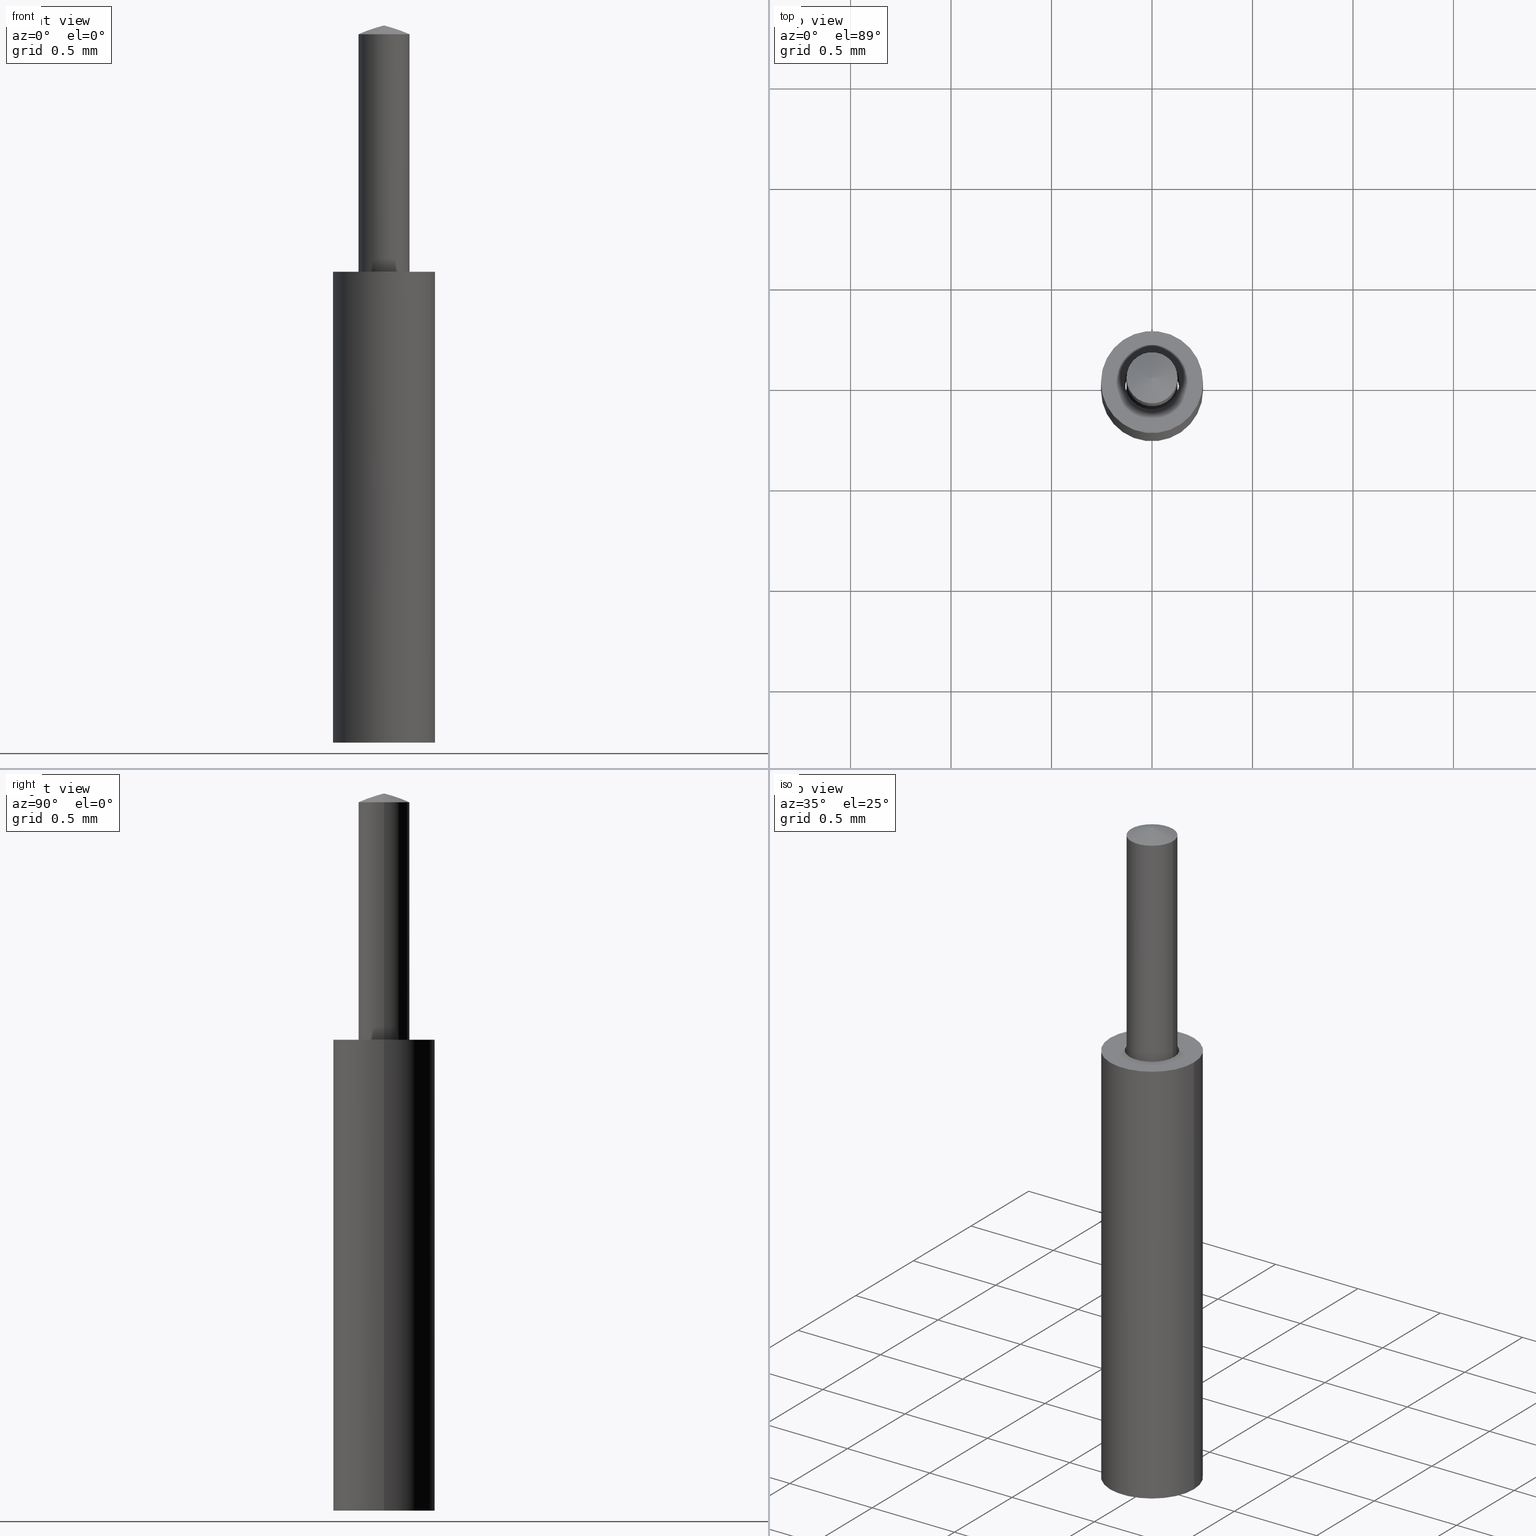
[diagram: canonical four-view strip — front | top / right | iso, engineering-drawing reading convention]
A machine part, canonical four-view strip (front | top / right | iso — engineering-drawing reading convention). The complete STEP part file that produces these views, byte-faithful:
ISO-10303-21;
HEADER;
FILE_DESCRIPTION (( 'STEP AP203' ),
    '1' );
FILE_NAME ('A2236-1-WR.STEP',
    '2013-11-19T12:27:52',
    ( '' ),
    ( '' ),
    'SwSTEP 2.0',
    'SolidWorks 2012',
    '' );
FILE_SCHEMA (( 'CONFIG_CONTROL_DESIGN' ));
ENDSEC;

DATA;
#1 = EDGE_CURVE ( 'NONE', #324, #334, #346, .T. ) ;
#2 = EDGE_CURVE ( 'NONE', #334, #301, #308, .T. ) ;
#3 = EDGE_CURVE ( 'NONE', #266, #330, #320, .T. ) ;
#4 = EDGE_CURVE ( 'NONE', #264, #271, #283, .T. ) ;
#5 = EDGE_CURVE ( 'NONE', #324, #351, #267, .T. ) ;
#6 = EDGE_CURVE ( 'NONE', #364, #340, #328, .T. ) ;
#7 = EDGE_CURVE ( 'NONE', #301, #351, #314, .T. ) ;
#8 = EDGE_CURVE ( 'NONE', #364, #266, #278, .T. ) ;
#9 = EDGE_CURVE ( 'NONE', #334, #324, #319, .T. ) ;
#10 = EDGE_CURVE ( 'NONE', #340, #330, #354, .T. ) ;
#11 = EDGE_CURVE ( 'NONE', #330, #266, #307, .T. ) ;
#12 = EDGE_CURVE ( 'NONE', #351, #301, #292, .T. ) ;
#13 = EDGE_CURVE ( 'NONE', #340, #364, #305, .T. ) ;
#14 = EDGE_CURVE ( 'NONE', #264, #345, #355, .T. ) ;
#15 = EDGE_CURVE ( 'NONE', #271, #365, #356, .T. ) ;
#16 = EDGE_CURVE ( 'NONE', #365, #345, #281, .T. ) ;
#17 = EDGE_CURVE ( 'NONE', #279, #271, #359, .T. ) ;
#18 = EDGE_CURVE ( 'NONE', #271, #264, #362, .T. ) ;
#19 = EDGE_CURVE ( 'NONE', #279, #264, #296, .T. ) ;
#20 = EDGE_CURVE ( 'NONE', #345, #365, #333, .T. ) ;
#21 = AXIS2_PLACEMENT_3D ( 'NONE', #227, #225, #138 ) ;
#22 = AXIS2_PLACEMENT_3D ( 'NONE', #151, #248, #135 ) ;
#23 = AXIS2_PLACEMENT_3D ( 'NONE', #244, #235, #232 ) ;
#24 = AXIS2_PLACEMENT_3D ( 'NONE', #261, #262, #169 ) ;
#25 = AXIS2_PLACEMENT_3D ( 'NONE', #245, #234, #233 ) ;
#26 = AXIS2_PLACEMENT_3D ( 'NONE', #251, #249, #250 ) ;
#27 = AXIS2_PLACEMENT_3D ( 'NONE', #260, #247, #258 ) ;
#28 = AXIS2_PLACEMENT_3D ( 'NONE', #236, #237, #238 ) ;
#29 = AXIS2_PLACEMENT_3D ( 'NONE', #239, #242, #241 ) ;
#30 = AXIS2_PLACEMENT_3D ( 'NONE', #230, #229, #137 ) ;
#31 = AXIS2_PLACEMENT_3D ( 'NONE', #141, #142, #252 ) ;
#32 = AXIS2_PLACEMENT_3D ( 'NONE', #143, #147, #146 ) ;
#33 = AXIS2_PLACEMENT_3D ( 'NONE', #149, #148, #153 ) ;
#34 = AXIS2_PLACEMENT_3D ( 'NONE', #156, #155, #154 ) ;
#35 = AXIS2_PLACEMENT_3D ( 'NONE', #183, #180, #184 ) ;
#36 = AXIS2_PLACEMENT_3D ( 'NONE', #140, #158, #157 ) ;
#37 = AXIS2_PLACEMENT_3D ( 'NONE', #159, #160, #145 ) ;
#38 = AXIS2_PLACEMENT_3D ( 'NONE', #161, #163, #150 ) ;
#39 = AXIS2_PLACEMENT_3D ( 'NONE', #168, #166, #162 ) ;
#40 = AXIS2_PLACEMENT_3D ( 'NONE', #165, #170, #174 ) ;
#41 = AXIS2_PLACEMENT_3D ( 'NONE', #176, #173, #171 ) ;
#42 = AXIS2_PLACEMENT_3D ( 'NONE', #177, #175, #167 ) ;
#43 = AXIS2_PLACEMENT_3D ( 'NONE', #179, #181, #178 ) ;
#44 = APPROVAL ( #217, 'UNSPECIFIED' ) ;
#45 = APPROVAL ( #136, 'UNSPECIFIED' ) ;
#46 = APPROVAL ( #223, 'UNSPECIFIED' ) ;
#47 = CC_DESIGN_PERSON_AND_ORGANIZATION_ASSIGNMENT ( #127, #256, ( #68 ) ) ;
#48 = CC_DESIGN_APPROVAL ( #45, ( #62 ) ) ;
#49 = ADVANCED_FACE ( 'NONE', ( #327, #318 ), #144, .T. ) ;
#50 = ADVANCED_FACE ( 'NONE', ( #270 ), #338, .T. ) ;
#51 = ADVANCED_FACE ( 'NONE', ( #332 ), #93, .F. ) ;
#52 = ADVANCED_FACE ( 'NONE', ( #331 ), #88, .T. ) ;
#53 = ADVANCED_FACE ( 'NONE', ( #300, #94 ), #172, .T. ) ;
#54 = CC_DESIGN_PERSON_AND_ORGANIZATION_ASSIGNMENT ( #91, #253, ( #62 ) ) ;
#55 = AXIS2_PLACEMENT_3D ( 'NONE', #188, #193, #192 ) ;
#56 = PRODUCT_RELATED_PRODUCT_CATEGORY ( 'detail', '', ( #84 ) ) ;
#57 = CC_DESIGN_SECURITY_CLASSIFICATION ( #62, ( #68 ) ) ;
#58 = CC_DESIGN_PERSON_AND_ORGANIZATION_ASSIGNMENT ( #125, #224, ( #68 ) ) ;
#59 = CC_DESIGN_PERSON_AND_ORGANIZATION_ASSIGNMENT ( #133, #218, ( #63 ) ) ;
#60 =( GEOMETRIC_REPRESENTATION_CONTEXT ( 3 ) GLOBAL_UNCERTAINTY_ASSIGNED_CONTEXT ( ( #79 ) ) GLOBAL_UNIT_ASSIGNED_CONTEXT ( ( #206, #205, #209 ) ) REPRESENTATION_CONTEXT ( 'NONE', 'WORKASPACE' ) );
#61 = CC_DESIGN_DATE_AND_TIME_ASSIGNMENT ( #114, #221, ( #63 ) ) ;
#62 = SECURITY_CLASSIFICATION ( '', '', #255 ) ;
#63 = PRODUCT_DEFINITION ( 'UNKNOWN', '', #68, #83 ) ;
#64 = AXIS2_PLACEMENT_3D ( 'NONE', #203, #211, #213 ) ;
#65 = CC_DESIGN_PERSON_AND_ORGANIZATION_ASSIGNMENT ( #132, #214, ( #84 ) ) ;
#66 = CC_DESIGN_DATE_AND_TIME_ASSIGNMENT ( #92, #254, ( #62 ) ) ;
#67 = AXIS2_PLACEMENT_3D ( 'NONE', #185, #182, #186 ) ;
#68 = PRODUCT_DEFINITION_FORMATION_WITH_SPECIFIED_SOURCE ( 'ANY', '', #84, .NOT_KNOWN. ) ;
#69 = CC_DESIGN_APPROVAL ( #46, ( #68 ) ) ;
#70 = CC_DESIGN_APPROVAL ( #44, ( #63 ) ) ;
#71 = DIMENSIONAL_EXPONENTS ( 1.000000000000000000, 0.0000000000000000000, 0.0000000000000000000, 0.0000000000000000000, 0.0000000000000000000, 0.0000000000000000000, 0.0000000000000000000 ) ;
#72 = ADVANCED_FACE ( 'NONE', ( #341 ), #86, .F. ) ;
#73 = ADVANCED_FACE ( 'NONE', ( #117 ), #109, .T. ) ;
#74 = ADVANCED_FACE ( 'NONE', ( #325 ), #134, .T. ) ;
#75 = ADVANCED_FACE ( 'NONE', ( #113 ), #102, .T. ) ;
#76 = ADVANCED_FACE ( 'NONE', ( #111 ), #130, .T. ) ;
#77 = ADVANCED_FACE ( 'NONE', ( #110 ), #187, .T. ) ;
#78 = ADVANCED_BREP_SHAPE_REPRESENTATION ( 'A2236-1-WR', ( #80, #81, #64 ), #60 ) ;
#79 = UNCERTAINTY_MEASURE_WITH_UNIT (LENGTH_MEASURE( 1.000000000000000100E-005 ), #206, 'distance_accuracy_value', 'NONE');
#80 = MANIFOLD_SOLID_BREP ( 'Revolve1', #343 ) ;
#81 = MANIFOLD_SOLID_BREP ( 'Revolve2', #309 ) ;
#82 = PRODUCT_DEFINITION_SHAPE ( 'NONE', 'NONE',  #63 ) ;
#83 = DESIGN_CONTEXT ( 'detailed design', #216, 'design' ) ;
#84 = PRODUCT ( 'A2236-1-WR', 'A2236-1-WR', '', ( #212 ) ) ;
#85 = PERSON ( 'UNSPECIFIED', 'UNSPECIFIED', 'UNSPECIFIED', ('UNSPECIFIED'), ('UNSPECIFIED'), ('UNSPECIFIED') ) ;
#86 = CYLINDRICAL_SURFACE ( 'NONE', #41, 0.005345904096558285100 ) ;
#87 = APPROVAL_DATE_TIME ( #90, #45 ) ;
#88 = CYLINDRICAL_SURFACE ( 'NONE', #39, 0.01000000000000000000 ) ;
#89 = COORDINATED_UNIVERSAL_TIME_OFFSET ( 5, 0, .BEHIND. ) ;
#90 = DATE_AND_TIME ( #106, #101 ) ;
#91 = PERSON_AND_ORGANIZATION ( #85, #131 ) ;
#92 = DATE_AND_TIME ( #119, #120 ) ;
#93 = CYLINDRICAL_SURFACE ( 'NONE', #38, 0.005345904096558285100 ) ;
#94 = FACE_BOUND ( 'NONE', #323, .T. ) ;
#95 = CALENDAR_DATE ( 2013, 19, 11 ) ;
#96 = PERSON_AND_ORGANIZATION ( #85, #131 ) ;
#97 = APPROVAL_DATE_TIME ( #121, #44 ) ;
#98 = CALENDAR_DATE ( 2013, 19, 11 ) ;
#99 = APPROVAL_PERSON_ORGANIZATION ( #105, #44, #219 ) ;
#100 = PERSON_AND_ORGANIZATION ( #85, #131 ) ;
#101 = LOCAL_TIME ( 7, 27, 52.00000000000000000, #103 ) ;
#102 = TOROIDAL_SURFACE ( 'NONE', #35, -0.008182880665241365500, 0.03289599500414629200 ) ;
#103 = COORDINATED_UNIVERSAL_TIME_OFFSET ( 5, 0, .BEHIND. ) ;
#104 = LOCAL_TIME ( 7, 27, 52.00000000000000000, #89 ) ;
#105 = PERSON_AND_ORGANIZATION ( #85, #131 ) ;
#106 = CALENDAR_DATE ( 2013, 19, 11 ) ;
#107 = SHAPE_DEFINITION_REPRESENTATION ( #82, #78 ) ;
#108 = LENGTH_MEASURE_WITH_UNIT ( LENGTH_MEASURE( 0.02539999999999999900 ), #207 );
#109 = CYLINDRICAL_SURFACE ( 'NONE', #42, 0.005000000000000000100 ) ;
#110 = FACE_OUTER_BOUND ( 'NONE', #295, .T. ) ;
#111 = FACE_OUTER_BOUND ( 'NONE', #317, .T. ) ;
#112 = LOCAL_TIME ( 7, 27, 52.00000000000000000, #116 ) ;
#113 = FACE_OUTER_BOUND ( 'NONE', #277, .T. ) ;
#114 = DATE_AND_TIME ( #98, #104 ) ;
#115 = APPROVAL_PERSON_ORGANIZATION ( #100, #46, #222 ) ;
#116 = COORDINATED_UNIVERSAL_TIME_OFFSET ( 5, 0, .BEHIND. ) ;
#117 = FACE_OUTER_BOUND ( 'NONE', #285, .T. ) ;
#118 = DATE_AND_TIME ( #126, #128 ) ;
#119 = CALENDAR_DATE ( 2013, 19, 11 ) ;
#120 = LOCAL_TIME ( 7, 27, 52.00000000000000000, #123 ) ;
#121 = DATE_AND_TIME ( #95, #112 ) ;
#122 = APPROVAL_PERSON_ORGANIZATION ( #96, #45, #139 ) ;
#123 = COORDINATED_UNIVERSAL_TIME_OFFSET ( 5, 0, .BEHIND. ) ;
#124 = APPROVAL_DATE_TIME ( #118, #46 ) ;
#125 = PERSON_AND_ORGANIZATION ( #85, #131 ) ;
#126 = CALENDAR_DATE ( 2013, 19, 11 ) ;
#127 = PERSON_AND_ORGANIZATION ( #85, #131 ) ;
#128 = LOCAL_TIME ( 7, 27, 52.00000000000000000, #129 ) ;
#129 = COORDINATED_UNIVERSAL_TIME_OFFSET ( 5, 0, .BEHIND. ) ;
#130 = TOROIDAL_SURFACE ( 'NONE', #67, -0.008182880665241365500, 0.03289599500414629200 ) ;
#131 = ORGANIZATION ( 'UNSPECIFIED', 'UNSPECIFIED', '' ) ;
#132 = PERSON_AND_ORGANIZATION ( #85, #131 ) ;
#133 = PERSON_AND_ORGANIZATION ( #85, #131 ) ;
#134 = CYLINDRICAL_SURFACE ( 'NONE', #43, 0.01000000000000000000 ) ;
#135 = DIRECTION ( 'NONE',  ( -1.000000000000000000, 0.0000000000000000000, 0.0000000000000000000 ) ) ;
#136 = APPROVAL_STATUS ( 'not_yet_approved' ) ;
#137 = DIRECTION ( 'NONE',  ( -1.000000000000000000, 0.0000000000000000000, 0.0000000000000000000 ) ) ;
#138 = DIRECTION ( 'NONE',  ( -1.000000000000000000, 0.0000000000000000000, 0.0000000000000000000 ) ) ;
#139 = APPROVAL_ROLE ( '' ) ;
#140 = CARTESIAN_POINT ( 'NONE',  ( 0.0000000000000000000, 0.005345904096558279900, 0.09224620568251602800 ) ) ;
#141 = CARTESIAN_POINT ( 'NONE',  ( 0.008182880665241365500, 0.0000000000000000000, 0.1086287128368767600 ) ) ;
#142 = DIRECTION ( 'NONE',  ( 0.0000000000000000000, -1.000000000000000000, 0.0000000000000000000 ) ) ;
#143 = CARTESIAN_POINT ( 'NONE',  ( 0.0000000000000000000, 0.0000000000000000000, 0.1387676933219367000 ) ) ;
#144 = PLANE ( 'NONE',  #36 ) ;
#145 = DIRECTION ( 'NONE',  ( -1.000000000000000000, 0.0000000000000000000, 0.0000000000000000000 ) ) ;
#146 = DIRECTION ( 'NONE',  ( -1.000000000000000000, 0.0000000000000000000, 0.0000000000000000000 ) ) ;
#147 = DIRECTION ( 'NONE',  ( -0.0000000000000000000, -0.0000000000000000000, -1.000000000000000000 ) ) ;
#148 = DIRECTION ( 'NONE',  ( -1.224646799147353200E-016, 1.000000000000000000, 0.0000000000000000000 ) ) ;
#149 = CARTESIAN_POINT ( 'NONE',  ( -0.008182880665241365500, -1.002113861449260200E-018, 0.1086287128368767600 ) ) ;
#150 = DIRECTION ( 'NONE',  ( -1.000000000000000000, 0.0000000000000000000, 0.0000000000000000000 ) ) ;
#151 = CARTESIAN_POINT ( 'NONE',  ( 0.0000000000000000000, 0.0000000000000000000, 0.0000000000000000000 ) ) ;
#152 = CARTESIAN_POINT ( 'NONE',  ( 0.005345904096558285100, 6.546844340398827900E-019, 0.0000000000000000000 ) ) ;
#153 = DIRECTION ( 'NONE',  ( -1.000000000000000000, -1.224646799147353200E-016, 0.0000000000000000000 ) ) ;
#154 = DIRECTION ( 'NONE',  ( -1.000000000000000000, 0.0000000000000000000, 0.0000000000000000000 ) ) ;
#155 = DIRECTION ( 'NONE',  ( -0.0000000000000000000, -0.0000000000000000000, -1.000000000000000000 ) ) ;
#156 = CARTESIAN_POINT ( 'NONE',  ( 0.0000000000000000000, 0.0000000000000000000, 0.0000000000000000000 ) ) ;
#157 = DIRECTION ( 'NONE',  ( 1.000000000000000000, 0.0000000000000000000, -0.0000000000000000000 ) ) ;
#158 = DIRECTION ( 'NONE',  ( 0.0000000000000000000, 0.0000000000000000000, 1.000000000000000000 ) ) ;
#159 = CARTESIAN_POINT ( 'NONE',  ( 0.0000000000000000000, 0.0000000000000000000, 0.0000000000000000000 ) ) ;
#160 = DIRECTION ( 'NONE',  ( -0.0000000000000000000, -0.0000000000000000000, -1.000000000000000000 ) ) ;
#161 = CARTESIAN_POINT ( 'NONE',  ( 0.0000000000000000000, 0.0000000000000000000, 0.0000000000000000000 ) ) ;
#162 = DIRECTION ( 'NONE',  ( -1.000000000000000000, 0.0000000000000000000, 0.0000000000000000000 ) ) ;
#163 = DIRECTION ( 'NONE',  ( -0.0000000000000000000, -0.0000000000000000000, -1.000000000000000000 ) ) ;
#164 = DIRECTION ( 'NONE',  ( -0.0000000000000000000, -0.0000000000000000000, -1.000000000000000000 ) ) ;
#165 = CARTESIAN_POINT ( 'NONE',  ( 0.0000000000000000000, 0.005345904096558290300, 0.0000000000000000000 ) ) ;
#166 = DIRECTION ( 'NONE',  ( -0.0000000000000000000, -0.0000000000000000000, -1.000000000000000000 ) ) ;
#167 = DIRECTION ( 'NONE',  ( -1.000000000000000000, 0.0000000000000000000, 0.0000000000000000000 ) ) ;
#168 = CARTESIAN_POINT ( 'NONE',  ( 0.0000000000000000000, 0.0000000000000000000, 0.0000000000000000000 ) ) ;
#169 = DIRECTION ( 'NONE',  ( -1.000000000000000000, 0.0000000000000000000, 0.0000000000000000000 ) ) ;
#170 = DIRECTION ( 'NONE',  ( -0.0000000000000000000, 0.0000000000000000000, -1.000000000000000000 ) ) ;
#171 = DIRECTION ( 'NONE',  ( -1.000000000000000000, 0.0000000000000000000, 0.0000000000000000000 ) ) ;
#172 = PLANE ( 'NONE',  #40 ) ;
#173 = DIRECTION ( 'NONE',  ( -0.0000000000000000000, -0.0000000000000000000, -1.000000000000000000 ) ) ;
#174 = DIRECTION ( 'NONE',  ( -1.000000000000000000, 0.0000000000000000000, 0.0000000000000000000 ) ) ;
#175 = DIRECTION ( 'NONE',  ( -0.0000000000000000000, -0.0000000000000000000, -1.000000000000000000 ) ) ;
#176 = CARTESIAN_POINT ( 'NONE',  ( 0.0000000000000000000, 0.0000000000000000000, 0.0000000000000000000 ) ) ;
#177 = CARTESIAN_POINT ( 'NONE',  ( 0.0000000000000000000, 0.0000000000000000000, 0.0000000000000000000 ) ) ;
#178 = DIRECTION ( 'NONE',  ( -1.000000000000000000, 0.0000000000000000000, 0.0000000000000000000 ) ) ;
#179 = CARTESIAN_POINT ( 'NONE',  ( 0.0000000000000000000, 0.0000000000000000000, 0.0000000000000000000 ) ) ;
#180 = DIRECTION ( 'NONE',  ( -0.0000000000000000000, -0.0000000000000000000, -1.000000000000000000 ) ) ;
#181 = DIRECTION ( 'NONE',  ( -0.0000000000000000000, -0.0000000000000000000, -1.000000000000000000 ) ) ;
#182 = DIRECTION ( 'NONE',  ( -0.0000000000000000000, -0.0000000000000000000, -1.000000000000000000 ) ) ;
#183 = CARTESIAN_POINT ( 'NONE',  ( 0.0000000000000000000, 0.0000000000000000000, 0.1086287128368767600 ) ) ;
#184 = DIRECTION ( 'NONE',  ( -1.000000000000000000, 0.0000000000000000000, 0.0000000000000000000 ) ) ;
#185 = CARTESIAN_POINT ( 'NONE',  ( 0.0000000000000000000, 0.0000000000000000000, 0.1086287128368767600 ) ) ;
#186 = DIRECTION ( 'NONE',  ( -1.000000000000000000, 0.0000000000000000000, 0.0000000000000000000 ) ) ;
#187 = PLANE ( 'NONE',  #55 ) ;
#188 = CARTESIAN_POINT ( 'NONE',  ( 0.0000000000000000000, 0.0000000000000000000, 0.0000000000000000000 ) ) ;
#189 = CARTESIAN_POINT ( 'NONE',  ( -0.005000000000000000100, 0.0000000000000000000, 0.1387676933219367000 ) ) ;
#190 = CARTESIAN_POINT ( 'NONE',  ( -0.005345904096558290300, 0.0000000000000000000, 0.0000000000000000000 ) ) ;
#191 = CARTESIAN_POINT ( 'NONE',  ( 0.005345904096558289400, 6.546844340398833700E-019, 0.0000000000000000000 ) ) ;
#192 = DIRECTION ( 'NONE',  ( -1.000000000000000000, 0.0000000000000000000, 0.0000000000000000000 ) ) ;
#193 = DIRECTION ( 'NONE',  ( -0.0000000000000000000, 0.0000000000000000000, -1.000000000000000000 ) ) ;
#194 = CARTESIAN_POINT ( 'NONE',  ( 0.005000000000000000100, 6.123233995736766900E-019, 0.1387676933219367000 ) ) ;
#195 = CARTESIAN_POINT ( 'NONE',  ( 0.0000000000000000000, 0.0000000000000000000, 0.1404907113826559800 ) ) ;
#196 = CARTESIAN_POINT ( 'NONE',  ( -0.01000000000000000000, 0.0000000000000000000, 0.0000000000000000000 ) ) ;
#197 = CARTESIAN_POINT ( 'NONE',  ( -0.01000000000000000000, 0.0000000000000000000, 0.09224620568251602800 ) ) ;
#198 = CARTESIAN_POINT ( 'NONE',  ( 0.01000000000000000000, 1.224646799147353400E-018, 0.09224620568251602800 ) ) ;
#199 = CARTESIAN_POINT ( 'NONE',  ( -0.005000000000000000100, 0.0000000000000000000, 0.0000000000000000000 ) ) ;
#200 = CARTESIAN_POINT ( 'NONE',  ( 0.005000000000000000100, 6.123233995736766900E-019, 0.0000000000000000000 ) ) ;
#201 = CARTESIAN_POINT ( 'NONE',  ( 0.01000000000000000000, 1.224646799147353400E-018, 0.0000000000000000000 ) ) ;
#202 = CARTESIAN_POINT ( 'NONE',  ( -0.005345904096558279900, 0.0000000000000000000, 0.09224620568251602800 ) ) ;
#203 = CARTESIAN_POINT ( 'NONE',  ( 0.0000000000000000000, 0.0000000000000000000, 0.0000000000000000000 ) ) ;
#204 = CARTESIAN_POINT ( 'NONE',  ( 0.005345904096558279900, 6.546844340398825000E-019, 0.09224620568251602800 ) ) ;
#205 =( NAMED_UNIT ( * ) PLANE_ANGLE_UNIT ( ) SI_UNIT ( $, .RADIAN. ) );
#206 =( CONVERSION_BASED_UNIT ( 'INCH', #108 ) LENGTH_UNIT ( ) NAMED_UNIT ( #71 ) );
#207 =( LENGTH_UNIT ( ) NAMED_UNIT ( * ) SI_UNIT ( $, .METRE. ) );
#208 = APPLICATION_PROTOCOL_DEFINITION ( 'international standard', 'config_control_design', 1994, #210 ) ;
#209 =( NAMED_UNIT ( * ) SI_UNIT ( $, .STERADIAN. ) SOLID_ANGLE_UNIT ( ) );
#210 = APPLICATION_CONTEXT ( 'configuration controlled 3d designs of mechanical parts and assemblies' ) ;
#211 = DIRECTION ( 'NONE',  ( 0.0000000000000000000, 0.0000000000000000000, 1.000000000000000000 ) ) ;
#212 = MECHANICAL_CONTEXT ( 'NONE', #210, 'mechanical' ) ;
#213 = DIRECTION ( 'NONE',  ( 1.000000000000000000, 0.0000000000000000000, 0.0000000000000000000 ) ) ;
#214 = PERSON_AND_ORGANIZATION_ROLE ( 'design_owner' ) ;
#215 = APPLICATION_PROTOCOL_DEFINITION ( 'international standard', 'config_control_design', 1994, #216 ) ;
#216 = APPLICATION_CONTEXT ( 'configuration controlled 3d designs of mechanical parts and assemblies' ) ;
#217 = APPROVAL_STATUS ( 'not_yet_approved' ) ;
#218 = PERSON_AND_ORGANIZATION_ROLE ( 'creator' ) ;
#219 = APPROVAL_ROLE ( '' ) ;
#220 = CARTESIAN_POINT ( 'NONE',  ( 0.01000000000000000000, 1.224646799147353400E-018, 0.0000000000000000000 ) ) ;
#221 = DATE_TIME_ROLE ( 'creation_date' ) ;
#222 = APPROVAL_ROLE ( '' ) ;
#223 = APPROVAL_STATUS ( 'not_yet_approved' ) ;
#224 = PERSON_AND_ORGANIZATION_ROLE ( 'creator' ) ;
#225 = DIRECTION ( 'NONE',  ( -0.0000000000000000000, -0.0000000000000000000, -1.000000000000000000 ) ) ;
#226 = CARTESIAN_POINT ( 'NONE',  ( -0.01000000000000000000, 0.0000000000000000000, 0.0000000000000000000 ) ) ;
#227 = CARTESIAN_POINT ( 'NONE',  ( 0.0000000000000000000, 0.0000000000000000000, 0.09224620568251602800 ) ) ;
#228 = CARTESIAN_POINT ( 'NONE',  ( -0.005345904096558285100, 0.0000000000000000000, 0.0000000000000000000 ) ) ;
#229 = DIRECTION ( 'NONE',  ( -0.0000000000000000000, -0.0000000000000000000, -1.000000000000000000 ) ) ;
#230 = CARTESIAN_POINT ( 'NONE',  ( 0.0000000000000000000, 0.0000000000000000000, 0.0000000000000000000 ) ) ;
#231 = DIRECTION ( 'NONE',  ( -0.0000000000000000000, -0.0000000000000000000, -1.000000000000000000 ) ) ;
#232 = DIRECTION ( 'NONE',  ( -1.000000000000000000, 0.0000000000000000000, 0.0000000000000000000 ) ) ;
#233 = DIRECTION ( 'NONE',  ( -1.000000000000000000, 0.0000000000000000000, 0.0000000000000000000 ) ) ;
#234 = DIRECTION ( 'NONE',  ( -0.0000000000000000000, -0.0000000000000000000, -1.000000000000000000 ) ) ;
#235 = DIRECTION ( 'NONE',  ( -0.0000000000000000000, -0.0000000000000000000, -1.000000000000000000 ) ) ;
#236 = CARTESIAN_POINT ( 'NONE',  ( 0.0000000000000000000, 0.0000000000000000000, 0.0000000000000000000 ) ) ;
#237 = DIRECTION ( 'NONE',  ( -0.0000000000000000000, -0.0000000000000000000, -1.000000000000000000 ) ) ;
#238 = DIRECTION ( 'NONE',  ( -1.000000000000000000, 0.0000000000000000000, 0.0000000000000000000 ) ) ;
#239 = CARTESIAN_POINT ( 'NONE',  ( 0.0000000000000000000, 0.0000000000000000000, 0.09224620568251602800 ) ) ;
#240 = CARTESIAN_POINT ( 'NONE',  ( -0.005000000000000000100, 0.0000000000000000000, 0.0000000000000000000 ) ) ;
#241 = DIRECTION ( 'NONE',  ( -1.000000000000000000, 0.0000000000000000000, 0.0000000000000000000 ) ) ;
#242 = DIRECTION ( 'NONE',  ( -0.0000000000000000000, -0.0000000000000000000, -1.000000000000000000 ) ) ;
#243 = DIRECTION ( 'NONE',  ( -0.0000000000000000000, -0.0000000000000000000, -1.000000000000000000 ) ) ;
#244 = CARTESIAN_POINT ( 'NONE',  ( 0.0000000000000000000, 0.0000000000000000000, 0.1387676933219367000 ) ) ;
#245 = CARTESIAN_POINT ( 'NONE',  ( 0.0000000000000000000, 0.0000000000000000000, 0.0000000000000000000 ) ) ;
#246 = DIRECTION ( 'NONE',  ( -0.0000000000000000000, -0.0000000000000000000, -1.000000000000000000 ) ) ;
#247 = DIRECTION ( 'NONE',  ( -0.0000000000000000000, -0.0000000000000000000, -1.000000000000000000 ) ) ;
#248 = DIRECTION ( 'NONE',  ( -0.0000000000000000000, -0.0000000000000000000, -1.000000000000000000 ) ) ;
#249 = DIRECTION ( 'NONE',  ( -0.0000000000000000000, -0.0000000000000000000, -1.000000000000000000 ) ) ;
#250 = DIRECTION ( 'NONE',  ( -1.000000000000000000, 0.0000000000000000000, 0.0000000000000000000 ) ) ;
#251 = CARTESIAN_POINT ( 'NONE',  ( 0.0000000000000000000, 0.0000000000000000000, 0.09224620568251602800 ) ) ;
#252 = DIRECTION ( 'NONE',  ( 0.0000000000000000000, 0.0000000000000000000, -1.000000000000000000 ) ) ;
#253 = PERSON_AND_ORGANIZATION_ROLE ( 'classification_officer' ) ;
#254 = DATE_TIME_ROLE ( 'classification_date' ) ;
#255 = SECURITY_CLASSIFICATION_LEVEL ( 'unclassified' ) ;
#256 = PERSON_AND_ORGANIZATION_ROLE ( 'design_supplier' ) ;
#257 = DIRECTION ( 'NONE',  ( -0.0000000000000000000, -0.0000000000000000000, -1.000000000000000000 ) ) ;
#258 = DIRECTION ( 'NONE',  ( -1.000000000000000000, 0.0000000000000000000, 0.0000000000000000000 ) ) ;
#259 = CARTESIAN_POINT ( 'NONE',  ( 0.005000000000000000100, 6.123233995736766900E-019, 0.0000000000000000000 ) ) ;
#260 = CARTESIAN_POINT ( 'NONE',  ( 0.0000000000000000000, 0.0000000000000000000, 0.0000000000000000000 ) ) ;
#261 = CARTESIAN_POINT ( 'NONE',  ( 0.0000000000000000000, 0.0000000000000000000, 0.09224620568251602800 ) ) ;
#262 = DIRECTION ( 'NONE',  ( -0.0000000000000000000, -0.0000000000000000000, -1.000000000000000000 ) ) ;
#263 = DIRECTION ( 'NONE',  ( -0.0000000000000000000, -0.0000000000000000000, -1.000000000000000000 ) ) ;
#264 = VERTEX_POINT ( 'NONE', #194 ) ;
#265 = ORIENTED_EDGE ( 'NONE', *, *, #12, .F. ) ;
#266 = VERTEX_POINT ( 'NONE', #191 ) ;
#267 = LINE ( 'NONE', #220, #358 ) ;
#268 = ORIENTED_EDGE ( 'NONE', *, *, #19, .F. ) ;
#269 = ORIENTED_EDGE ( 'NONE', *, *, #1, .F. ) ;
#270 = FACE_OUTER_BOUND ( 'NONE', #315, .T. ) ;
#271 = VERTEX_POINT ( 'NONE', #189 ) ;
#272 = ORIENTED_EDGE ( 'NONE', *, *, #3, .T. ) ;
#273 = ORIENTED_EDGE ( 'NONE', *, *, #19, .T. ) ;
#274 = EDGE_LOOP ( 'NONE', ( #287, #326, #298, #265 ) ) ;
#275 = EDGE_LOOP ( 'NONE', ( #291, #336 ) ) ;
#276 = ORIENTED_EDGE ( 'NONE', *, *, #16, .T. ) ;
#277 = EDGE_LOOP ( 'NONE', ( #268, #289, #352 ) ) ;
#278 = LINE ( 'NONE', #152, #344 ) ;
#279 = VERTEX_POINT ( 'NONE', #195 ) ;
#280 = ORIENTED_EDGE ( 'NONE', *, *, #9, .T. ) ;
#281 = CIRCLE ( 'NONE', #30, 0.005000000000000000100 ) ;
#282 = EDGE_LOOP ( 'NONE', ( #347, #297, #357, #311 ) ) ;
#283 = CIRCLE ( 'NONE', #23, 0.005000000000000000100 ) ;
#284 = ORIENTED_EDGE ( 'NONE', *, *, #6, .F. ) ;
#285 = EDGE_LOOP ( 'NONE', ( #286, #304, #302, #366 ) ) ;
#286 = ORIENTED_EDGE ( 'NONE', *, *, #18, .T. ) ;
#287 = ORIENTED_EDGE ( 'NONE', *, *, #5, .F. ) ;
#288 = ORIENTED_EDGE ( 'NONE', *, *, #5, .T. ) ;
#289 = ORIENTED_EDGE ( 'NONE', *, *, #17, .T. ) ;
#290 = EDGE_LOOP ( 'NONE', ( #280, #288, #306, #339 ) ) ;
#291 = ORIENTED_EDGE ( 'NONE', *, *, #13, .T. ) ;
#292 = CIRCLE ( 'NONE', #28, 0.01000000000000000000 ) ;
#293 = VECTOR ( 'NONE', #257, 39.37007874015748100 ) ;
#294 = ORIENTED_EDGE ( 'NONE', *, *, #4, .T. ) ;
#295 = EDGE_LOOP ( 'NONE', ( #276, #348 ) ) ;
#296 = CIRCLE ( 'NONE', #33, 0.03289599500414629200 ) ;
#297 = ORIENTED_EDGE ( 'NONE', *, *, #13, .F. ) ;
#298 = ORIENTED_EDGE ( 'NONE', *, *, #2, .T. ) ;
#299 = ORIENTED_EDGE ( 'NONE', *, *, #14, .F. ) ;
#300 = FACE_OUTER_BOUND ( 'NONE', #363, .T. ) ;
#301 = VERTEX_POINT ( 'NONE', #196 ) ;
#302 = ORIENTED_EDGE ( 'NONE', *, *, #16, .F. ) ;
#303 = VECTOR ( 'NONE', #164, 39.37007874015748100 ) ;
#304 = ORIENTED_EDGE ( 'NONE', *, *, #14, .T. ) ;
#305 = CIRCLE ( 'NONE', #29, 0.005345904096558279900 ) ;
#306 = ORIENTED_EDGE ( 'NONE', *, *, #7, .F. ) ;
#307 = CIRCLE ( 'NONE', #27, 0.005345904096558290300 ) ;
#308 = LINE ( 'NONE', #226, #321 ) ;
#309 = CLOSED_SHELL ( 'NONE', ( #72, #74, #53, #52, #49, #51 ) ) ;
#310 = ORIENTED_EDGE ( 'NONE', *, *, #12, .T. ) ;
#311 = ORIENTED_EDGE ( 'NONE', *, *, #11, .T. ) ;
#312 = EDGE_LOOP ( 'NONE', ( #284, #350, #272, #360 ) ) ;
#313 = EDGE_LOOP ( 'NONE', ( #316, #269 ) ) ;
#314 = CIRCLE ( 'NONE', #25, 0.01000000000000000000 ) ;
#315 = EDGE_LOOP ( 'NONE', ( #299, #294, #361, #335 ) ) ;
#316 = ORIENTED_EDGE ( 'NONE', *, *, #9, .F. ) ;
#317 = EDGE_LOOP ( 'NONE', ( #349, #273, #342 ) ) ;
#318 = FACE_OUTER_BOUND ( 'NONE', #313, .T. ) ;
#319 = CIRCLE ( 'NONE', #26, 0.01000000000000000000 ) ;
#320 = CIRCLE ( 'NONE', #22, 0.005345904096558290300 ) ;
#321 = VECTOR ( 'NONE', #231, 39.37007874015748100 ) ;
#322 = VECTOR ( 'NONE', #243, 39.37007874015748100 ) ;
#323 = EDGE_LOOP ( 'NONE', ( #337, #353 ) ) ;
#324 = VERTEX_POINT ( 'NONE', #198 ) ;
#325 = FACE_OUTER_BOUND ( 'NONE', #290, .T. ) ;
#326 = ORIENTED_EDGE ( 'NONE', *, *, #1, .T. ) ;
#327 = FACE_BOUND ( 'NONE', #275, .T. ) ;
#328 = CIRCLE ( 'NONE', #24, 0.005345904096558279900 ) ;
#329 = ORIENTED_EDGE ( 'NONE', *, *, #7, .T. ) ;
#330 = VERTEX_POINT ( 'NONE', #190 ) ;
#331 = FACE_OUTER_BOUND ( 'NONE', #274, .T. ) ;
#332 = FACE_OUTER_BOUND ( 'NONE', #282, .T. ) ;
#333 = CIRCLE ( 'NONE', #34, 0.005000000000000000100 ) ;
#334 = VERTEX_POINT ( 'NONE', #197 ) ;
#335 = ORIENTED_EDGE ( 'NONE', *, *, #20, .F. ) ;
#336 = ORIENTED_EDGE ( 'NONE', *, *, #6, .T. ) ;
#337 = ORIENTED_EDGE ( 'NONE', *, *, #11, .F. ) ;
#338 = CYLINDRICAL_SURFACE ( 'NONE', #37, 0.005000000000000000100 ) ;
#339 = ORIENTED_EDGE ( 'NONE', *, *, #2, .F. ) ;
#340 = VERTEX_POINT ( 'NONE', #202 ) ;
#341 = FACE_OUTER_BOUND ( 'NONE', #312, .T. ) ;
#342 = ORIENTED_EDGE ( 'NONE', *, *, #18, .F. ) ;
#343 = CLOSED_SHELL ( 'NONE', ( #73, #76, #77, #75, #50 ) ) ;
#344 = VECTOR ( 'NONE', #263, 39.37007874015748100 ) ;
#345 = VERTEX_POINT ( 'NONE', #200 ) ;
#346 = CIRCLE ( 'NONE', #21, 0.01000000000000000000 ) ;
#347 = ORIENTED_EDGE ( 'NONE', *, *, #8, .F. ) ;
#348 = ORIENTED_EDGE ( 'NONE', *, *, #20, .T. ) ;
#349 = ORIENTED_EDGE ( 'NONE', *, *, #17, .F. ) ;
#350 = ORIENTED_EDGE ( 'NONE', *, *, #8, .T. ) ;
#351 = VERTEX_POINT ( 'NONE', #201 ) ;
#352 = ORIENTED_EDGE ( 'NONE', *, *, #4, .F. ) ;
#353 = ORIENTED_EDGE ( 'NONE', *, *, #3, .F. ) ;
#354 = LINE ( 'NONE', #228, #303 ) ;
#355 = LINE ( 'NONE', #259, #293 ) ;
#356 = LINE ( 'NONE', #240, #322 ) ;
#357 = ORIENTED_EDGE ( 'NONE', *, *, #10, .T. ) ;
#358 = VECTOR ( 'NONE', #246, 39.37007874015748100 ) ;
#359 = CIRCLE ( 'NONE', #31, 0.03289599500414629200 ) ;
#360 = ORIENTED_EDGE ( 'NONE', *, *, #10, .F. ) ;
#361 = ORIENTED_EDGE ( 'NONE', *, *, #15, .T. ) ;
#362 = CIRCLE ( 'NONE', #32, 0.005000000000000000100 ) ;
#363 = EDGE_LOOP ( 'NONE', ( #329, #310 ) ) ;
#364 = VERTEX_POINT ( 'NONE', #204 ) ;
#365 = VERTEX_POINT ( 'NONE', #199 ) ;
#366 = ORIENTED_EDGE ( 'NONE', *, *, #15, .F. ) ;
ENDSEC;
END-ISO-10303-21;
